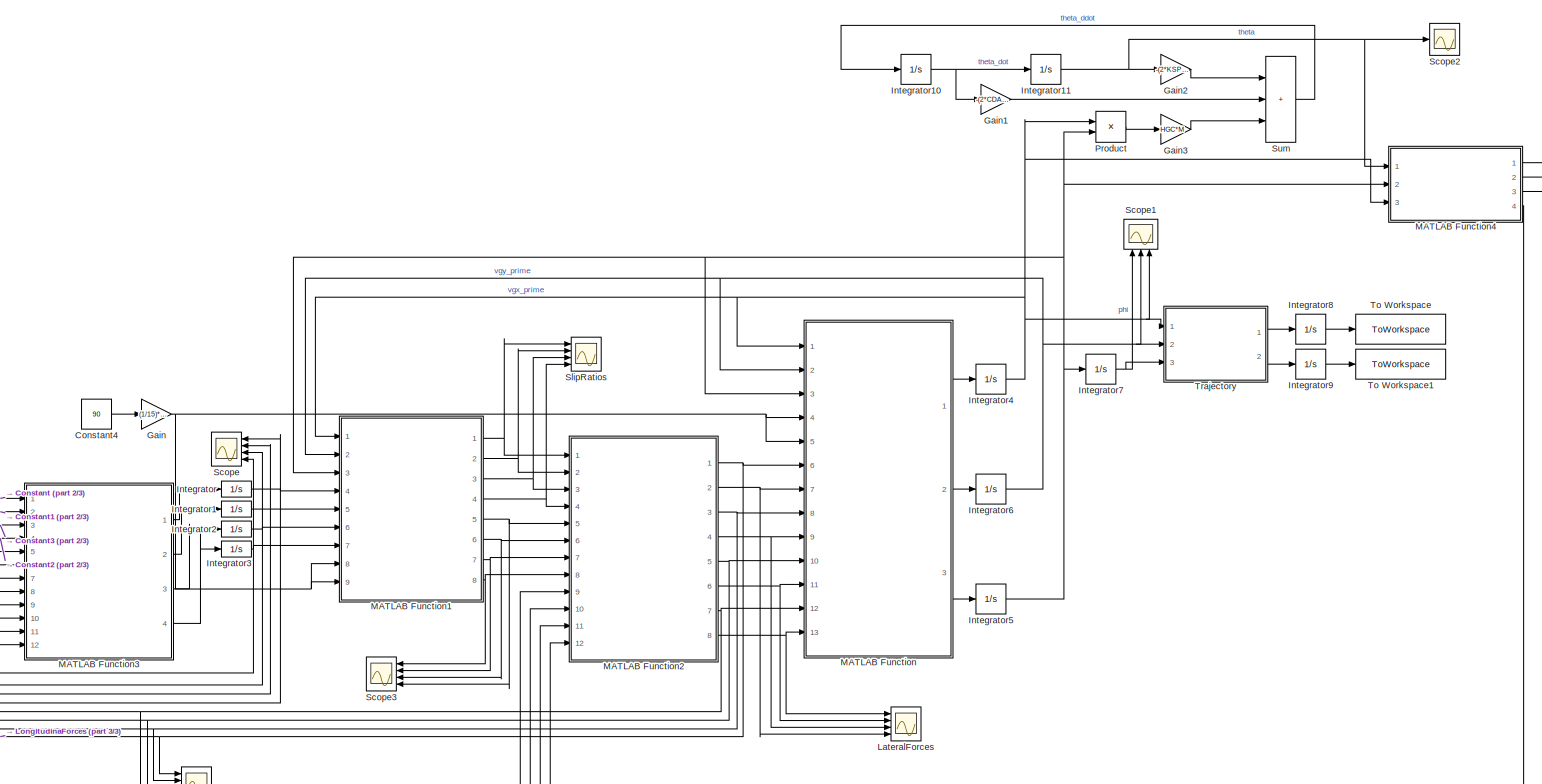
[diagram: root canvas - part 1/3, most of the canvas]
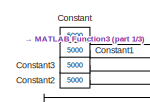
[diagram: root canvas - part 2/3, middle left region]
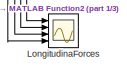
[diagram: root canvas - part 3/3, bottom left region]
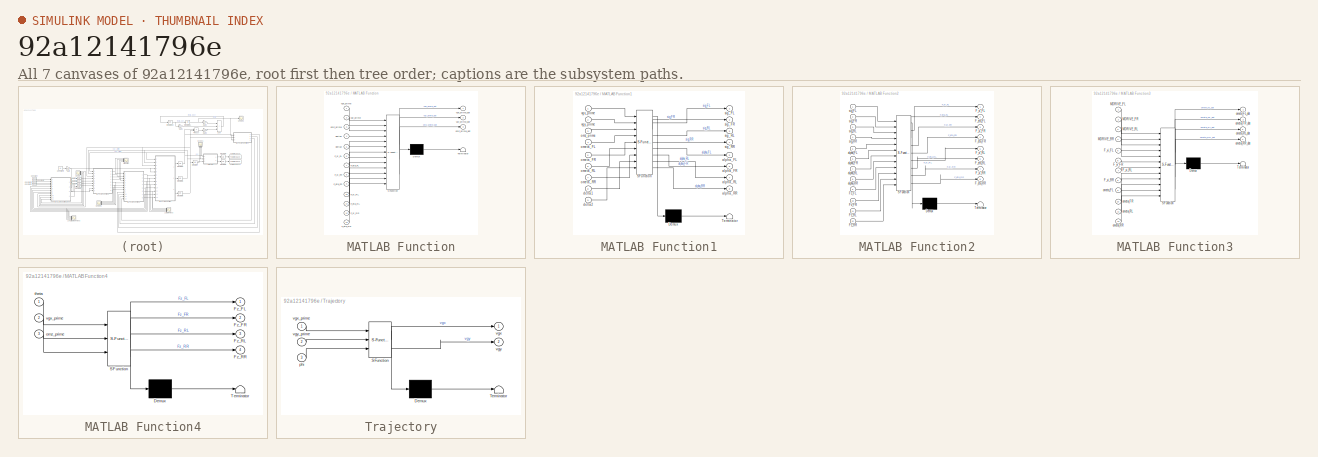
[diagram: thumbnail index - all 7 canvases of the model, root first then tree order]
MODEL slx_92a12141796e
KIND model
CONFIG AbsTol = auto
CONFIG EnableMultiTasking = off
CONFIG FixedStep = 1e-4
CONFIG MaxStep = auto
CONFIG MinStep = auto
CONFIG RelTol = 1e-3
CONFIG SampleTimeConstraint = Unconstrained
CONFIG SolverName = FixedStepAuto
CONFIG StartTime = 0.0
CONFIG StopTime = 20
BLOCK [Constant] Constant
  SampleTime = 0
  Value = 5000
BLOCK [Constant] Constant1
  Value = 5000
BLOCK [Constant] Constant2
  Value = 5000
BLOCK [Constant] Constant3
  Value = 5000
BLOCK [Constant] Constant4
  Value = 90
BLOCK [Gain] Gain
  Gain = (1/15)*(pi/180)
BLOCK [Gain] Gain1
  Gain = -(2*CDAMPING*(H*cos(BETA) - (D/E)*F*cos(GAMMA))^2)/(JXX_PRIME + M*HGC^2)
BLOCK [Gain] Gain2
  Gain = -(2*KSPRING*(H*cos(BETA) - (D/E)*F*cos(GAMMA))^2)/(JXX_PRIME + M*HGC^2)
BLOCK [Gain] Gain3
  Gain = HGC*M
BLOCK [Integrator] Integrator
  InitialCondition = ometa0
  Ports = [1, 1]
BLOCK [Integrator] Integrator1
  InitialCondition = ometa0
  Ports = [1, 1]
BLOCK [Integrator] Integrator10
  Ports = [1, 1]
BLOCK [Integrator] Integrator11
  Ports = [1, 1]
BLOCK [Integrator] Integrator2
  InitialCondition = ometa0
  Ports = [1, 1]
BLOCK [Integrator] Integrator3
  InitialCondition = ometa0
  Ports = [1, 1]
BLOCK [Integrator] Integrator4
  InitialCondition = v0
  Ports = [1, 1]
BLOCK [Integrator] Integrator5
  Ports = [1, 1]
BLOCK [Integrator] Integrator6
  Ports = [1, 1]
BLOCK [Integrator] Integrator7
  Ports = [1, 1]
BLOCK [Integrator] Integrator8
  Ports = [1, 1]
BLOCK [Integrator] Integrator9
  Ports = [1, 1]
BLOCK [Scope] LateralForces
  Floating = off
  NumInputPorts = 4
  Ports = [4]
  ScopeSpecificationString = Simulink.scopes.TimeScopeBlockCfg('CurrentConfiguration', extmgr.ConfigurationSet(extmgr.Configuration('Core','General UI',true),extmgr.Configuration('Core','Source UI',true),extmgr.Configuration('Sources','WiredSimulink',true),extmgr.Configuration('Visuals','Time Domain',true,'SerializedDisplays',{struct('MinYLimReal','-9.1411','MaxYLimReal','82.26993','YLabelReal','','MinYLimMag','0.00000','MaxY...<+3471ch>
BLOCK [Scope] LongitudinaForces
  Floating = off
  NumInputPorts = 4
  Ports = [4]
  ScopeSpecificationString = Simulink.scopes.TimeScopeBlockCfg('CurrentConfiguration', extmgr.ConfigurationSet(extmgr.Configuration('Core','General UI',true),extmgr.Configuration('Core','Source UI',true),extmgr.Configuration('Sources','WiredSimulink',true,'DataLoggingVariableName','ScopeData3'),extmgr.Configuration('Visuals','Time Domain',true,'SerializedDisplays',{struct('MinYLimReal','-74.01699','MaxYLimReal','825.7613','YL...<+3515ch>
BLOCK [SubSystem] MATLAB Function
  ErrorFcn = Stateflow.Translate.translate
  PermitHierarchicalResolution = ExplicitOnly
  Ports = [13, 3]
  RequestExecContextInheritance = off
  SFBlockType = MATLAB Function
  TreatAsAtomicUnit = on
BLOCK [Demux] MATLAB Function/ Demux 
  Outputs = 1
  Ports = [1, 1]
BLOCK [S-Function] MATLAB Function/ SFunction 
  EnableBusSupport = on
  FunctionName = sf_sfun
  Parameters = A,B,JZZPRIME,M,T
  PortCounts = [13 4]
  Ports = [13, 4]
  SFcnIsStateOwnerBlock = off
  SFunctionDeploymentMode = off
  Tag = Stateflow S-Function 2
BLOCK [Terminator] MATLAB Function/ Terminator 
BLOCK [Inport] MATLAB Function/F_eta_FL
  Port = 7
BLOCK [Inport] MATLAB Function/F_eta_FR
  Port = 9
BLOCK [Inport] MATLAB Function/F_eta_RL
  Port = 11
BLOCK [Inport] MATLAB Function/F_eta_RR
  Port = 13
BLOCK [Inport] MATLAB Function/F_xi_FL
  Port = 6
BLOCK [Inport] MATLAB Function/F_xi_FR
  Port = 8
BLOCK [Inport] MATLAB Function/F_xi_RL
  Port = 10
BLOCK [Inport] MATLAB Function/F_xi_RR
  Port = 12
BLOCK [Inport] MATLAB Function/delta1
  Port = 4
BLOCK [Inport] MATLAB Function/delta2
  Port = 5
BLOCK [Inport] MATLAB Function/omz_prime
  Port = 3
BLOCK [Outport] MATLAB Function/omz_prime_dot
  Port = 3
BLOCK [Inport] MATLAB Function/vgx_prime
BLOCK [Outport] MATLAB Function/vgx_prime_dot
BLOCK [Inport] MATLAB Function/vgy_prime
  Port = 2
BLOCK [Outport] MATLAB Function/vgy_prime_dot
  Port = 2
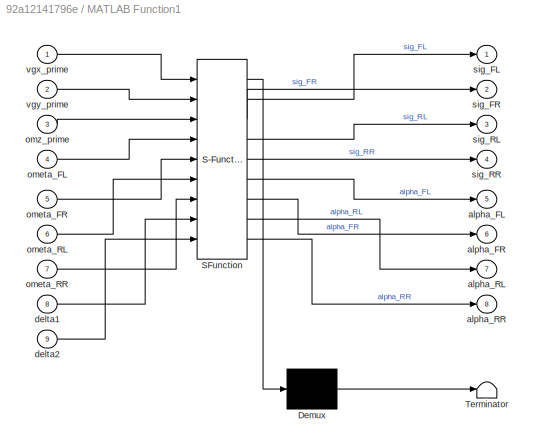
BLOCK [SubSystem] MATLAB Function1
  ErrorFcn = Stateflow.Translate.translate
  PermitHierarchicalResolution = ExplicitOnly
  Ports = [9, 8]
  RequestExecContextInheritance = off
  SFBlockType = MATLAB Function
  TreatAsAtomicUnit = on
BLOCK [Demux] MATLAB Function1/ Demux 
  Outputs = 1
  Ports = [1, 1]
BLOCK [S-Function] MATLAB Function1/ SFunction 
  EnableBusSupport = on
  FunctionName = sf_sfun
  Parameters = A,B,RWHEEL,T
  PortCounts = [9 9]
  Ports = [9, 9]
  SFcnIsStateOwnerBlock = off
  SFunctionDeploymentMode = off
  Tag = Stateflow S-Function 1
BLOCK [Terminator] MATLAB Function1/ Terminator 
BLOCK [Outport] MATLAB Function1/alpha_FL
  Port = 5
BLOCK [Outport] MATLAB Function1/alpha_FR
  Port = 6
BLOCK [Outport] MATLAB Function1/alpha_RL
  Port = 7
BLOCK [Outport] MATLAB Function1/alpha_RR
  Port = 8
BLOCK [Inport] MATLAB Function1/delta1
  Port = 8
BLOCK [Inport] MATLAB Function1/delta2
  Port = 9
BLOCK [Inport] MATLAB Function1/ometa_FL
  Port = 4
BLOCK [Inport] MATLAB Function1/ometa_FR
  Port = 5
BLOCK [Inport] MATLAB Function1/ometa_RL
  Port = 6
BLOCK [Inport] MATLAB Function1/ometa_RR
  Port = 7
BLOCK [Inport] MATLAB Function1/omz_prime
  Port = 3
BLOCK [Outport] MATLAB Function1/sig_FL
BLOCK [Outport] MATLAB Function1/sig_FR
  Port = 2
BLOCK [Outport] MATLAB Function1/sig_RL
  Port = 3
BLOCK [Outport] MATLAB Function1/sig_RR
  Port = 4
BLOCK [Inport] MATLAB Function1/vgx_prime
BLOCK [Inport] MATLAB Function1/vgy_prime
  Port = 2
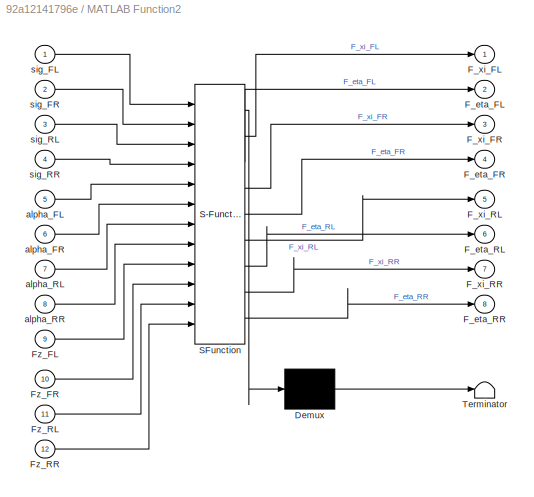
BLOCK [SubSystem] MATLAB Function2
  ErrorFcn = Stateflow.Translate.translate
  PermitHierarchicalResolution = ExplicitOnly
  Ports = [12, 8]
  RequestExecContextInheritance = off
  SFBlockType = MATLAB Function
  TreatAsAtomicUnit = on
BLOCK [Demux] MATLAB Function2/ Demux 
  Outputs = 1
  Ports = [1, 1]
BLOCK [S-Function] MATLAB Function2/ SFunction 
  EnableBusSupport = on
  FunctionName = sf_sfun
  Parameters = CWHEEL,KR,KTL,KTV,RWHEEL
  PortCounts = [12 9]
  Ports = [12, 9]
  SFcnIsStateOwnerBlock = off
  SFunctionDeploymentMode = off
  Tag = Stateflow S-Function 3
BLOCK [Terminator] MATLAB Function2/ Terminator 
BLOCK [Outport] MATLAB Function2/F_eta_FL
  Port = 2
BLOCK [Outport] MATLAB Function2/F_eta_FR
  Port = 4
BLOCK [Outport] MATLAB Function2/F_eta_RL
  Port = 6
BLOCK [Outport] MATLAB Function2/F_eta_RR
  Port = 8
BLOCK [Outport] MATLAB Function2/F_xi_FL
BLOCK [Outport] MATLAB Function2/F_xi_FR
  Port = 3
BLOCK [Outport] MATLAB Function2/F_xi_RL
  Port = 5
BLOCK [Outport] MATLAB Function2/F_xi_RR
  Port = 7
BLOCK [Inport] MATLAB Function2/Fz_FL
  Port = 9
BLOCK [Inport] MATLAB Function2/Fz_FR
  Port = 10
BLOCK [Inport] MATLAB Function2/Fz_RL
  Port = 11
BLOCK [Inport] MATLAB Function2/Fz_RR
  Port = 12
BLOCK [Inport] MATLAB Function2/alpha_FL
  Port = 5
BLOCK [Inport] MATLAB Function2/alpha_FR
  Port = 6
BLOCK [Inport] MATLAB Function2/alpha_RL
  Port = 7
BLOCK [Inport] MATLAB Function2/alpha_RR
  Port = 8
BLOCK [Inport] MATLAB Function2/sig_FL
BLOCK [Inport] MATLAB Function2/sig_FR
  Port = 2
BLOCK [Inport] MATLAB Function2/sig_RL
  Port = 3
BLOCK [Inport] MATLAB Function2/sig_RR
  Port = 4
BLOCK [SubSystem] MATLAB Function3
  ErrorFcn = Stateflow.Translate.translate
  PermitHierarchicalResolution = ExplicitOnly
  Ports = [12, 4]
  RequestExecContextInheritance = off
  SFBlockType = MATLAB Function
  TreatAsAtomicUnit = on
BLOCK [Demux] MATLAB Function3/ Demux 
  Outputs = 1
  Ports = [1, 1]
BLOCK [S-Function] MATLAB Function3/ SFunction 
  EnableBusSupport = on
  FunctionName = sf_sfun
  Parameters = JWHEEL,RWHEEL
  PortCounts = [12 5]
  Ports = [12, 5]
  SFcnIsStateOwnerBlock = off
  SFunctionDeploymentMode = off
  Tag = Stateflow S-Function 4
BLOCK [Terminator] MATLAB Function3/ Terminator 
BLOCK [Inport] MATLAB Function3/F_xi_FL
  Port = 5
BLOCK [Inport] MATLAB Function3/F_xi_FR
  Port = 6
BLOCK [Inport] MATLAB Function3/F_xi_RL
  Port = 7
BLOCK [Inport] MATLAB Function3/F_xi_RR
  Port = 8
BLOCK [Inport] MATLAB Function3/MDRIVE_FL
BLOCK [Inport] MATLAB Function3/MDRIVE_FR
  Port = 2
BLOCK [Inport] MATLAB Function3/MDRIVE_RL
  Port = 3
BLOCK [Inport] MATLAB Function3/MDRIVE_RR
  Port = 4
BLOCK [Inport] MATLAB Function3/ometa_FL
  Port = 9
BLOCK [Outport] MATLAB Function3/ometa_FL_dot
BLOCK [Inport] MATLAB Function3/ometa_FR
  Port = 10
BLOCK [Outport] MATLAB Function3/ometa_FR_dot
  Port = 2
BLOCK [Inport] MATLAB Function3/ometa_RL
  Port = 11
BLOCK [Outport] MATLAB Function3/ometa_RL_dot
  Port = 3
BLOCK [Inport] MATLAB Function3/ometa_RR
  Port = 12
BLOCK [Outport] MATLAB Function3/ometa_RR_dot
  Port = 4
BLOCK [SubSystem] MATLAB Function4
  ErrorFcn = Stateflow.Translate.translate
  PermitHierarchicalResolution = ExplicitOnly
  Ports = [3, 4]
  RequestExecContextInheritance = off
  SFBlockType = MATLAB Function
  TreatAsAtomicUnit = on
BLOCK [Demux] MATLAB Function4/ Demux 
  Outputs = 1
  Ports = [1, 1]
BLOCK [S-Function] MATLAB Function4/ SFunction 
  EnableBusSupport = on
  FunctionName = sf_sfun
  Parameters = HG,HGC,M,T,g
  PortCounts = [3 5]
  Ports = [3, 5]
  SFcnIsStateOwnerBlock = off
  SFunctionDeploymentMode = off
  Tag = Stateflow S-Function 6
BLOCK [Terminator] MATLAB Function4/ Terminator 
BLOCK [Outport] MATLAB Function4/Fz_FL
BLOCK [Outport] MATLAB Function4/Fz_FR
  Port = 2
BLOCK [Outport] MATLAB Function4/Fz_RL
  Port = 3
BLOCK [Outport] MATLAB Function4/Fz_RR
  Port = 4
BLOCK [Inport] MATLAB Function4/omz_prime
  Port = 3
BLOCK [Inport] MATLAB Function4/theta
BLOCK [Inport] MATLAB Function4/vgx_prime
  Port = 2
BLOCK [Product] Product
  Ports = [2, 1]
BLOCK [Scope] Scope
  Floating = off
  NameLocation = top
  NumInputPorts = 4
  Ports = [4]
  ScopeSpecificationString = Simulink.scopes.TimeScopeBlockCfg('CurrentConfiguration', extmgr.ConfigurationSet(extmgr.Configuration('Core','General UI',true),extmgr.Configuration('Core','Source UI',true),extmgr.Configuration('Sources','WiredSimulink',true,'DataLoggingVariableName','ScopeData4'),extmgr.Configuration('Visuals','Time Domain',true,'SerializedDisplays',{struct('MinYLimReal','12.98813','MaxYLimReal','49.77351','YLa...<+3476ch>
BLOCK [Scope] Scope1
  Floating = off
  NameLocation = right
  NumInputPorts = 3
  Ports = [3]
  ScopeSpecificationString = Simulink.scopes.TimeScopeBlockCfg('CurrentConfiguration', extmgr.ConfigurationSet(extmgr.Configuration('Core','General UI',true),extmgr.Configuration('Core','Source UI',true),extmgr.Configuration('Sources','WiredSimulink',true,'DataLoggingVariableName','ScopeData2'),extmgr.Configuration('Visuals','Time Domain',true,'SerializedDisplays',{struct('MinYLimReal','-0.18171','MaxYLimReal','1.63535','YLab...<+3396ch>
BLOCK [Scope] Scope2
  Floating = off
  NumInputPorts = 1
  Ports = [1]
  ScopeSpecificationString = Simulink.scopes.TimeScopeBlockCfg('CurrentConfiguration', extmgr.ConfigurationSet(extmgr.Configuration('Core','General UI',true),extmgr.Configuration('Core','Source UI',true),extmgr.Configuration('Sources','WiredSimulink',true,'DataLoggingVariableName','ScopeData6'),extmgr.Configuration('Visuals','Time Domain',true,'SerializedDisplays',{struct('MinYLimReal','-1.27894','MaxYLimReal','11.51044','YLa...<+1368ch>
BLOCK [Scope] Scope3
  Floating = off
  NameLocation = top
  NumInputPorts = 4
  Ports = [4]
  ScopeSpecificationString = Simulink.scopes.TimeScopeBlockCfg('CurrentConfiguration', extmgr.ConfigurationSet(extmgr.Configuration('Core','General UI',true),extmgr.Configuration('Core','Source UI',true),extmgr.Configuration('Sources','WiredSimulink',true,'DataLoggingVariableName','ScopeData1'),extmgr.Configuration('Visuals','Time Domain',true),extmgr.Configuration('Tools','Plot Navigation',true),extmgr.Configuration('Tools',...<+40ch>
BLOCK [Scope] SlipRatios
  Floating = off
  NumInputPorts = 4
  Ports = [4]
  ScopeSpecificationString = Simulink.scopes.TimeScopeBlockCfg('CurrentConfiguration', extmgr.ConfigurationSet(extmgr.Configuration('Core','General UI',true),extmgr.Configuration('Core','Source UI',true),extmgr.Configuration('Sources','WiredSimulink',true,'DataLoggingVariableName','ScopeData5'),extmgr.Configuration('Visuals','Time Domain',true,'SerializedDisplays',{struct('MinYLimReal','-2.37151','MaxYLimReal','26.82173','YLa...<+3501ch>
BLOCK [Sum] Sum
  IconShape = rectangular
  Inputs = +++
  Ports = [3, 1]
BLOCK [ToWorkspace] To Workspace
  FixptAsFi = on
  MaxDataPoints = inf
  Ports = [1]
  SampleTime = -1
  Save2DSignal = 2-D array (concatenate along first dimension)
  VariableName = XG
BLOCK [ToWorkspace] To Workspace1
  FixptAsFi = on
  MaxDataPoints = inf
  Ports = [1]
  SampleTime = -1
  Save2DSignal = 2-D array (concatenate along first dimension)
  VariableName = YG
BLOCK [SubSystem] Trajectory
  ErrorFcn = Stateflow.Translate.translate
  PermitHierarchicalResolution = ExplicitOnly
  Ports = [3, 2]
  RequestExecContextInheritance = off
  SFBlockType = MATLAB Function
  TreatAsAtomicUnit = on
BLOCK [Demux] Trajectory/ Demux 
  Outputs = 1
  Ports = [1, 1]
BLOCK [S-Function] Trajectory/ SFunction 
  EnableBusSupport = on
  FunctionName = sf_sfun
  PortCounts = [3 3]
  Ports = [3, 3]
  SFcnIsStateOwnerBlock = off
  SFunctionDeploymentMode = off
  Tag = Stateflow S-Function 5
BLOCK [Terminator] Trajectory/ Terminator 
BLOCK [Inport] Trajectory/phi
  Port = 3
BLOCK [Outport] Trajectory/vgx
BLOCK [Inport] Trajectory/vgx_prime
BLOCK [Outport] Trajectory/vgy
  Port = 2
BLOCK [Inport] Trajectory/vgy_prime
  Port = 2
LINE Constant1:1 -> MATLAB Function3:2
LINE Constant2:1 -> MATLAB Function3:4
LINE Constant3:1 -> MATLAB Function3:3
LINE Constant4:1 -> Gain:1
LINE Constant:1 -> MATLAB Function3:1
LINE Gain1:1 -> Sum:2
LINE Gain2:1 -> Sum:1
LINE Gain3:1 -> Sum:3
NET Gain:1 -> MATLAB Function1:8, MATLAB Function1:9, MATLAB Function:4, MATLAB Function:5
NET Integrator10:1 -> Gain1:1, Integrator11:1
NET Integrator11:1 -> Gain2:1, MATLAB Function4:1, Scope2:1
NET Integrator1:1 -> MATLAB Function1:5, MATLAB Function3:10, Scope:2
NET Integrator2:1 -> MATLAB Function1:6, MATLAB Function3:11, Scope:3
NET Integrator3:1 -> MATLAB Function1:7, MATLAB Function3:12, Scope:4
NET Integrator4:1 -> MATLAB Function1:1, MATLAB Function4:2, MATLAB Function:1, Product:1, Scope1:3, Trajectory:1
NET Integrator5:1 -> Integrator7:1, MATLAB Function1:3, MATLAB Function4:3, MATLAB Function:3, Product:2
NET Integrator6:1 -> MATLAB Function1:2, MATLAB Function:2, Scope1:2, Trajectory:2
NET Integrator7:1 -> Scope1:1, Trajectory:3
LINE Integrator8:1 -> To Workspace:1
LINE Integrator9:1 -> To Workspace1:1
NET Integrator:1 -> MATLAB Function1:4, MATLAB Function3:9, Scope:1
NET MATLAB Function1:1 -> MATLAB Function2:1, SlipRatios:1
NET MATLAB Function1:2 -> MATLAB Function2:2, SlipRatios:2
NET MATLAB Function1:3 -> MATLAB Function2:3, SlipRatios:3
NET MATLAB Function1:4 -> MATLAB Function2:4, SlipRatios:4
NET MATLAB Function1:5 -> MATLAB Function2:5, Scope3:4
NET MATLAB Function1:6 -> MATLAB Function2:6, Scope3:3
NET MATLAB Function1:7 -> MATLAB Function2:7, Scope3:2
NET MATLAB Function1:8 -> MATLAB Function2:8, Scope3:1
NET MATLAB Function2:1 -> LongitudinaForces:1, MATLAB Function3:5, MATLAB Function:6
NET MATLAB Function2:2 -> LateralForces:4, MATLAB Function:7
NET MATLAB Function2:3 -> LongitudinaForces:2, MATLAB Function3:6, MATLAB Function:8
NET MATLAB Function2:4 -> LateralForces:3, MATLAB Function:9
NET MATLAB Function2:5 -> LongitudinaForces:3, MATLAB Function3:7, MATLAB Function:10
NET MATLAB Function2:6 -> LateralForces:2, MATLAB Function:11
NET MATLAB Function2:7 -> LongitudinaForces:4, MATLAB Function3:8, MATLAB Function:12
NET MATLAB Function2:8 -> LateralForces:1, MATLAB Function:13
LINE MATLAB Function3:1 -> Integrator:1
LINE MATLAB Function3:2 -> Integrator1:1
LINE MATLAB Function3:3 -> Integrator2:1
LINE MATLAB Function3:4 -> Integrator3:1
LINE MATLAB Function4:1 -> MATLAB Function2:9
LINE MATLAB Function4:2 -> MATLAB Function2:10
LINE MATLAB Function4:3 -> MATLAB Function2:11
LINE MATLAB Function4:4 -> MATLAB Function2:12
LINE MATLAB Function:1 -> Integrator4:1
LINE MATLAB Function:2 -> Integrator6:1
LINE MATLAB Function:3 -> Integrator5:1
LINE Product:1 -> Gain3:1
LINE Sum:1 -> Integrator10:1
LINE Trajectory:1 -> Integrator8:1
LINE Trajectory:2 -> Integrator9:1
note: NET lines group one-source signal fan-out (src -> all destinations, sorted); 1:1 wires keep LINE
CHART MATLAB Function2 states=1 transitions=1
  STATE_LABEL 'eML_blk_kernel()'
  STATE_LABEL 'SCRIPT:\nfunction [F_xi_FL, F_eta_FL, F_xi_FR, F_eta_FR, F_xi_RL, F_eta_RL, F_xi_RR, F_eta_RR] = ForcesModel(sig_FL, sig_FR, sig_RL, sig_RR, ...\n          alpha_FL, alpha_FR, alpha_RL, alpha_RR, Fz_FL, Fz_FR, Fz_RL, Fz_RR, CWHEEL, RWHEEL, KTL, KR, KTV)\n\nF_xi_FL = (6*RWHEEL*KTL*Fz_FL)*sig_FL/(CWHEEL*KR);\nF_xi_FR = (6*RWHEEL*KTL*Fz_FR)*sig_FR/(CWHEEL*KR);\nF_xi_RL = (6*RWHEEL*KTL*Fz_RL)*sig_RL/(CWHEEL...<+278ch>'
CHART MATLAB Function3 states=1 transitions=1
  STATE_LABEL 'eML_blk_kernel()'
  STATE_LABEL 'SCRIPT:\nfunction [ometa_FL_dot, ometa_FR_dot, ometa_RL_dot, ometa_RR_dot] = WheelDynamic(MDRIVE_FL, MDRIVE_FR, MDRIVE_RL, MDRIVE_RR, F_xi_FL, F_xi_FR, F_xi_RL, F_xi_RR, JWHEEL, RWHEEL, ometa_FL, ometa_FR, ometa_RL, ometa_RR)\n\n\nometa_FL_dot = (1/JWHEEL)*(MDRIVE_FL/ometa_FL - RWHEEL*F_xi_FL);\nometa_FR_dot = (1/JWHEEL)*(MDRIVE_FR/ometa_FR - RWHEEL*F_xi_FR);\nometa_RL_dot = (1/JWHEEL)*(MDRIVE_RL/ometa_...<+93ch>'
CHART Trajectory states=1 transitions=1
  STATE_LABEL 'eML_blk_kernel()'
  STATE_LABEL "SCRIPT:\nfunction [vgx,vgy] = PlanarTrajectory(vgx_prime, vgy_prime, phi)\n\nMROT = [[cos(phi) -sin(phi)];\n        [sin(phi) cos(phi)]];\n\nstate_prime = [vgx_prime, vgy_prime]';\n\nstate = MROT*state_prime;\n\nvgx = state(1);\nvgy = state(2);\nend"
CHART MATLAB Function4 states=1 transitions=1
  STATE_LABEL 'eML_blk_kernel()'
  STATE_LABEL 'SCRIPT:\nfunction [Fz_FL, Fz_FR, Fz_RL, Fz_RR] = LoadDistribution(theta, vgx_prime, omz_prime, g, HGC, HG, T, M)\n\nFcent = M*omz_prime*vgx_prime;\n\nFz_FL = (M*g*(1 + 2*HGC*theta/(2*T)) + Fcent*(HG/2*T))/2;\nFz_RL = (M*g*(1 + 2*HGC*theta/(2*T)) + Fcent*(HG/2*T))/2;\nFz_FR = (M*g*(1 - 2*HGC*theta/(2*T)) - Fcent*(HG/2*T))/2;\nFz_RR = (M*g*(1 - 2*HGC*theta/(2*T)) - Fcent*(HG/2*T))/2;\n\nend'
CHART MATLAB Function1 states=1 transitions=1
  STATE_LABEL 'eML_blk_kernel()'
  STATE_LABEL 'SCRIPT:\nfunction [sig_FL, sig_FR, sig_RL, sig_RR, alpha_FL, alpha_FR, alpha_RL, alpha_RR] = WheelModel(vgx_prime, vgy_prime, omz_prime, RWHEEL, ometa_FL, ...\n          ometa_FR, ometa_RL, ometa_RR, delta1, delta2, A, B, T)\n\nvFL = (vgx_prime - T*omz_prime)*cos(delta1) + (vgy_prime + A*omz_prime)*sin(delta1);\nvFR = (vgx_prime + T*omz_prime)*cos(delta2) + (vgy_prime + A*omz_prime)*sin(delta2);\nvRL = ...<+599ch>'
CHART MATLAB Function states=1 transitions=1
  STATE_LABEL 'eML_blk_kernel()'
  STATE_LABEL 'SCRIPT:\nfunction [vgx_prime_dot, vgy_prime_dot, omz_prime_dot] = Dynamics(vgx_prime, vgy_prime, omz_prime, delta1, delta2, JZZPRIME, M, A, B, T,...\n          F_xi_FL, F_eta_FL, F_xi_FR, F_eta_FR, F_xi_RL, F_eta_RL, F_xi_RR, F_eta_RR) \n\nF_x_FL = F_xi_FL*cos(delta1) - F_eta_FL*sin(delta1);\nF_y_FL = F_xi_FL*sin(delta1) + F_eta_FL*cos(delta1);\nF_x_FR = F_xi_FR*cos(delta2) - F_eta_FR*sin(delta2);\nF_y_F...<+430ch>'
CHART  states=0 transitions=0
CHART  states=0 transitions=0
CHART  states=0 transitions=0
CHART  states=0 transitions=0
CHART  states=0 transitions=0
CHART  states=0 transitions=0
